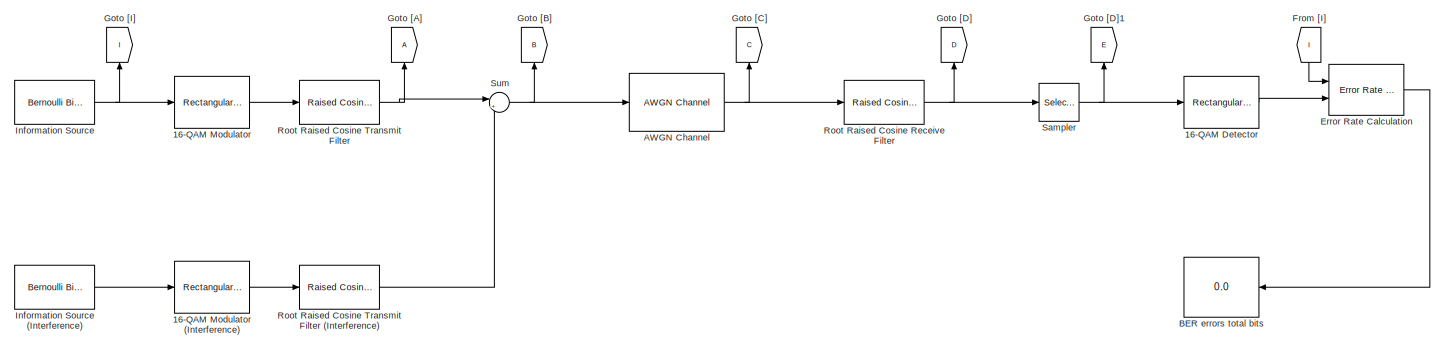
[diagram: root canvas - part 1/2, full width, top band]
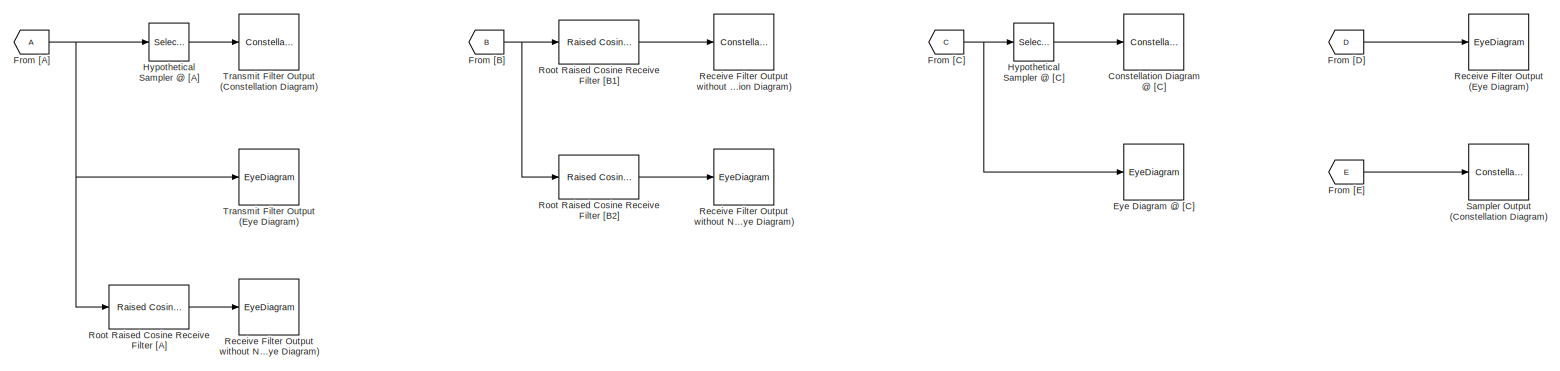
[diagram: root canvas - part 2/2, full width, bottom band]
MODEL slx_3459c69ff753
KIND model
CONFIG AbsTol = auto
CONFIG FixedStep = auto
CONFIG MaxStep = auto
CONFIG MinStep = auto
CONFIG RelTol = 1e-3
CONFIG SampleTimeConstraint = Unconstrained
CONFIG Solver = ode45
CONFIG SolverMode = Auto
CONFIG SolverName = ode45
CONFIG StartTime = 0.0
CONFIG StopTime = Inf
BLOCK [Reference] 16-QAM Detector  REF=commdigbbndam3/Rectangular QAM
Demodulator
Baseband
  AvgPow = 1
  Dec = Gray
  DecType = Hard decision
  M = 16
  Mapping = [0:15]
  MinDist = 2
  OutType = Bit
  PeakPow = 1
  Ph = 0
  Ports = [1, 1]
  PowType = Average Power
  SourceBlock = commdigbbndam3/Rectangular QAM\nDemodulator\nBaseband
  SourceType = Rectangular QAM Demodulator Baseband
  VarSource = Dialog
  Variance = 1
  denormFactorDTMode = Same word length as input
  denormFactorWordLen = 16
  derotateFactorDTMode = Same word length as input
  derotateFactorWordLen = 16
  outDtype1 = Inherit via internal rule
  outDtype2 = Inherit via internal rule
  prodOutDTMode = Inherit via internal rule
  prodOutOverflowMode = Wrap
  prodOutRoundingMode = Floor
  prodOutWordLen = 32
  sumDTMode = Inherit via internal rule
  sumWordLen = 32
BLOCK [Reference] 16-QAM Modulator  REF=commdigbbndam3/Rectangular QAM
Modulator
Baseband
  AvgPow = 1
  Enc = Gray
  InType = Bit
  M = 16
  Mapping = [0:15]
  MinDist = 2
  PeakPow = 1
  Ph = 0
  Ports = [1, 1]
  PowType = Average Power
  SourceBlock = commdigbbndam3/Rectangular QAM\nModulator\nBaseband
  SourceType = Rectangular QAM Modulator Baseband
  outDtype = double
  outFracLen = 15
  outFracLenMode = Best precision
  outUDDataType = sfix(16)
  outWordLen = 16
BLOCK [Reference] 16-QAM Modulator (Interference)  REF=commdigbbndam3/Rectangular QAM
Modulator
Baseband
  AvgPow = .01
  Enc = Gray
  InType = Bit
  M = 16
  Mapping = [0:15]
  MinDist = 2
  PeakPow = 1
  Ph = 0
  Ports = [1, 1]
  PowType = Average Power
  SourceBlock = commdigbbndam3/Rectangular QAM\nModulator\nBaseband
  SourceType = Rectangular QAM Modulator Baseband
  outDtype = double
  outFracLen = 15
  outFracLenMode = Best precision
  outUDDataType = sfix(16)
  outWordLen = 16
BLOCK [Reference] AWGN Channel  REF=commchan3/AWGN
Channel
  EbNodB = 10
  EsNodB = 10
  InputProcessing = Columns as channels (frame based)
  Ports = [1, 1]
  Ps = 1.01
  SNRdB = 15
  SourceBlock = commchan3/AWGN\nChannel
  SourceType = AWGN Channel
  Tsym = 1
  UserDataPersistent = on
  bitsPerSym = 1
  noiseMode = Signal to noise ratio  (SNR)
  seed = 67
  variance = 1
BLOCK [Display] BER errors total bits
  Decimation = 1
  Format = short_e
  Ports = [1]
BLOCK [ConstellationDiagram] Constellation Diagram @ [C]
  Ports = [1]
  ScopeSpecificationString = comm.scopes.ConstellationDiagramBlockCfg('CurrentConfiguration', extmgr.ConfigurationSet(extmgr.Configuration('Core','General UI',true),extmgr.Configuration('Core','Source UI',true),extmgr.Configuration('Sources','WiredSimulink',true),extmgr.Configuration('Sources','Simulink',false),extmgr.Configuration('Sources','File',false),extmgr.Configuration('Sources','Workspace',false),extmgr.Configuration(...<+1879ch>
BLOCK [Reference] Error Rate Calculation  REF=commsink2/Error Rate
Calculation
  N = 128
  PMode = Port
  Ports = [2, 1]
  RsMode2 = off
  SourceBlock = commsink2/Error Rate\nCalculation
  SourceType = Error Rate Calculation
  WsName = ErrorVec
  cp_mode = Entire frame
  maxBits = 1e6
  numErr = 100
  st_delay = 0
  stop = off
  subframe = [64:10000]
BLOCK [EyeDiagram] Eye Diagram @ [C]
  Ports = [1]
  ScopeSpecificationString = comm.scopes.EyeDiagramBlockCfg('CurrentConfiguration', extmgr.ConfigurationSet(extmgr.Configuration('Core','General UI',true),extmgr.Configuration('Core','Source UI',true),extmgr.Configuration('Sources','WiredSimulink',true),extmgr.Configuration('Sources','Simulink',false),extmgr.Configuration('Sources','File',false),extmgr.Configuration('Sources','Workspace',false),extmgr.Configuration('Sources',...<+1081ch>  <repeated x3 — deduplicated; at blocks: Eye Diagram @ [C], Receive Filter Output without Noise (Eye Diagra…, Receive Filter Output without Noise + Interfere…>
BLOCK [From] From [A]
BLOCK [From] From [B]
  GotoTag = B
BLOCK [From] From [C]
  GotoTag = C
BLOCK [From] From [D]
  GotoTag = D
BLOCK [From] From [E]
  GotoTag = E
BLOCK [From] From [I]
  GotoTag = I
BLOCK [Goto] Goto [A]
BLOCK [Goto] Goto [B]
  GotoTag = B
BLOCK [Goto] Goto [C]
  GotoTag = C
BLOCK [Goto] Goto [D]
  GotoTag = D
BLOCK [Goto] Goto [D]1
  GotoTag = E
BLOCK [Goto] Goto [I]
  GotoTag = I
BLOCK [Selector] Hypothetical Sampler @ [A]
  Indices = [257:16:40512]
  InputPortWidth = 40512
  Ports = [1, 1]
BLOCK [Selector] Hypothetical Sampler @ [C]
  Indices = [257:16:40512]
  InputPortWidth = 40512
  Ports = [1, 1]
BLOCK [Reference] Information Source  REF=commrandsrc2/Bernoulli Binary
Generator
  P = 0.5
  Ports = [0, 1]
  SourceBlock = commrandsrc2/Bernoulli Binary\nGenerator
  SourceType = Bernoulli Binary Generator
  Ts = 1
  frameBased = on
  orient = off
  outDataType = double
  sampPerFrame = 10128
  seed = 61
BLOCK [Reference] Information Source (Interference)  REF=commrandsrc2/Bernoulli Binary
Generator
  P = 0.5
  Ports = [0, 1]
  SourceBlock = commrandsrc2/Bernoulli Binary\nGenerator
  SourceType = Bernoulli Binary Generator
  Ts = 1
  frameBased = on
  orient = off
  outDataType = double
  sampPerFrame = 10128
  seed = 2^30
BLOCK [EyeDiagram] Receive Filter Output (Eye Diagram)
  Ports = [1]
  ScopeSpecificationString = comm.scopes.EyeDiagramBlockCfg('CurrentConfiguration', extmgr.ConfigurationSet(extmgr.Configuration('Core','General UI',true),extmgr.Configuration('Core','Source UI',true),extmgr.Configuration('Sources','WiredSimulink',true),extmgr.Configuration('Sources','Simulink',false),extmgr.Configuration('Sources','File',false),extmgr.Configuration('Sources','Workspace',false),extmgr.Configuration('Sources',...<+1079ch>
BLOCK [EyeDiagram] Receive Filter Output without Noise (Eye Diagram)
  Ports = [1]
BLOCK [ConstellationDiagram] Receive Filter Output without Noise + Interference (Constellation Diagram)
  Ports = [1]
  ScopeSpecificationString = comm.scopes.ConstellationDiagramBlockCfg('CurrentConfiguration', extmgr.ConfigurationSet(extmgr.Configuration('Core','General UI',true),extmgr.Configuration('Core','Source UI',true),extmgr.Configuration('Sources','WiredSimulink',true),extmgr.Configuration('Sources','Simulink',false),extmgr.Configuration('Sources','File',false),extmgr.Configuration('Sources','Workspace',false),extmgr.Configuration(...<+1883ch>
BLOCK [EyeDiagram] Receive Filter Output without Noise + Interference (Eye Diagram)
  Ports = [1]
BLOCK [Reference] Root Raised Cosine Receive Filter  REF=commfilt2/Raised Cosine
Receive Filter
  D = (32)/2
  InputProcessing = Columns as channels (frame based)
  LockScale = off
  N = 16
  Ports = [1, 1]
  R = 0.35
  SourceBlock = commfilt2/Raised Cosine\nReceive Filter
  SourceType = Raised Cosine Receive Filter
  UserDataPersistent = on
  accumFracLength = 30
  accumMode = Same as product output
  accumWordLength = 32
  checkCoeff = off
  checkGain = Normalized
  coeffFracLength = 15
  coeffMode = Same word length as input
  coeffWordLength = 16
  currentFiltSpan = 32
  downFactor = 1
  downOffset = 0
  filtSpan = 32
  filtType = Square root
  filterGain = 1
  framing = Enforce single-rate processing
  launchFVT = on
  outputFracLength = 15
  outputMode = Same as accumulator
  outputWordLength = 16
  overflowMode = off
  prodOutputFracLength = 30
  prodOutputMode = Same as input
  prodOutputWordLength = 32
  rateMode = Downsampling
  roundingMode = Floor
  sampMode = Mute
  saveAsFlag = 0
  variableName = rcRxFilt1
BLOCK [Reference] Root Raised Cosine Receive Filter [A]  REF=commfilt2/Raised Cosine
Receive Filter
  D = (32)/2
  InputProcessing = Columns as channels (frame based)
  LockScale = off
  N = 16
  Ports = [1, 1]
  R = 0.35
  SourceBlock = commfilt2/Raised Cosine\nReceive Filter
  SourceType = Raised Cosine Receive Filter
  UserDataPersistent = on
  accumFracLength = 30
  accumMode = Same as product output
  accumWordLength = 32
  checkCoeff = off
  checkGain = Normalized
  coeffFracLength = 15
  coeffMode = Same word length as input
  coeffWordLength = 16
  currentFiltSpan = 32
  downFactor = 1
  downOffset = 0
  filtSpan = 32
  filtType = Square root
  filterGain = 1
  framing = Enforce single-rate processing
  launchFVT = on
  outputFracLength = 15
  outputMode = Same as accumulator
  outputWordLength = 16
  overflowMode = off
  prodOutputFracLength = 30
  prodOutputMode = Same as input
  prodOutputWordLength = 32
  rateMode = Downsampling
  roundingMode = Floor
  sampMode = Mute
  saveAsFlag = 0
  variableName = rcRxFilt
BLOCK [Reference] Root Raised Cosine Receive Filter [B1]  REF=commfilt2/Raised Cosine
Receive Filter
  D = (32)/2
  InputProcessing = Columns as channels (frame based)
  LockScale = off
  N = 16
  Ports = [1, 1]
  R = 0.35
  SourceBlock = commfilt2/Raised Cosine\nReceive Filter
  SourceType = Raised Cosine Receive Filter
  UserDataPersistent = on
  accumFracLength = 30
  accumMode = Same as product output
  accumWordLength = 32
  checkCoeff = off
  checkGain = Normalized
  coeffFracLength = 15
  coeffMode = Same word length as input
  coeffWordLength = 16
  currentFiltSpan = 32
  downFactor = 16
  downOffset = 0
  filtSpan = 32
  filtType = Square root
  filterGain = 1
  framing = Enforce single-rate processing
  launchFVT = on
  outputFracLength = 15
  outputMode = Same as accumulator
  outputWordLength = 16
  overflowMode = off
  prodOutputFracLength = 30
  prodOutputMode = Same as input
  prodOutputWordLength = 32
  rateMode = Downsampling
  roundingMode = Floor
  sampMode = Mute
  saveAsFlag = 0
  variableName = rcRxFilt1
BLOCK [Reference] Root Raised Cosine Receive Filter [B2]  REF=commfilt2/Raised Cosine
Receive Filter
  D = (32)/2
  InputProcessing = Columns as channels (frame based)
  LockScale = off
  N = 16
  Ports = [1, 1]
  R = 0.35
  SourceBlock = commfilt2/Raised Cosine\nReceive Filter
  SourceType = Raised Cosine Receive Filter
  UserDataPersistent = on
  accumFracLength = 30
  accumMode = Same as product output
  accumWordLength = 32
  checkCoeff = off
  checkGain = Normalized
  coeffFracLength = 15
  coeffMode = Same word length as input
  coeffWordLength = 16
  currentFiltSpan = 32
  downFactor = 1
  downOffset = 0
  filtSpan = 32
  filtType = Square root
  filterGain = 1
  framing = Enforce single-rate processing
  launchFVT = on
  outputFracLength = 15
  outputMode = Same as accumulator
  outputWordLength = 16
  overflowMode = off
  prodOutputFracLength = 30
  prodOutputMode = Same as input
  prodOutputWordLength = 32
  rateMode = Downsampling
  roundingMode = Floor
  sampMode = Mute
  saveAsFlag = 0
  variableName = rcRxFilt1
BLOCK [Reference] Root Raised Cosine Transmit Filter  REF=commfilt2/Raised Cosine
Transmit Filter
  D = (32)/2
  InputProcessing = Columns as channels (frame based)
  LockScale = off
  N = 16
  Ports = [1, 1]
  R = 0.35
  SourceBlock = commfilt2/Raised Cosine\nTransmit Filter
  SourceType = Raised Cosine Transmit Filter
  UserDataPersistent = on
  accumFracLength = 30
  accumMode = Inherit via internal rule
  accumWordLength = 32
  checkCoeff = off
  checkGain = Normalized
  coeffFracLength = 15
  coeffMode = Same word length as input
  coeffWordLength = 16
  currentFiltSpan = 32
  filtSpan = 32
  filtType = Square root
  filterGain = 1
  framing = Enforce single-rate processing
  launchFVT = on
  outputFracLength = 15
  outputMode = Same as accumulator
  outputWordLength = 16
  overflowMode = off
  prodOutputFracLength = 30
  prodOutputMode = Inherit via internal rule
  prodOutputWordLength = 32
  roundingMode = Floor
  sampMode = Mute
  saveAsFlag = 0
  variableName = rcTxFilt
BLOCK [Reference] Root Raised Cosine Transmit Filter (Interference)  REF=commfilt2/Raised Cosine
Transmit Filter
  D = (32)/2
  InputProcessing = Columns as channels (frame based)
  LockScale = off
  N = 16
  Ports = [1, 1]
  R = 0.35
  SourceBlock = commfilt2/Raised Cosine\nTransmit Filter
  SourceType = Raised Cosine Transmit Filter
  UserDataPersistent = on
  accumFracLength = 30
  accumMode = Inherit via internal rule
  accumWordLength = 32
  checkCoeff = off
  checkGain = Normalized
  coeffFracLength = 15
  coeffMode = Same word length as input
  coeffWordLength = 16
  currentFiltSpan = 32
  filtSpan = 32
  filtType = Square root
  filterGain = 1
  framing = Enforce single-rate processing
  launchFVT = on
  outputFracLength = 15
  outputMode = Same as accumulator
  outputWordLength = 16
  overflowMode = off
  prodOutputFracLength = 30
  prodOutputMode = Inherit via internal rule
  prodOutputWordLength = 32
  roundingMode = Floor
  sampMode = Mute
  saveAsFlag = 0
  variableName = rcTxFilt1
BLOCK [Selector] Sampler
  Indices = [1:16:40512]
  InputPortWidth = 40512
  Ports = [1, 1]
BLOCK [ConstellationDiagram] Sampler Output (Constellation Diagram)
  Ports = [1]
  ScopeSpecificationString = comm.scopes.ConstellationDiagramBlockCfg('CurrentConfiguration', extmgr.ConfigurationSet(extmgr.Configuration('Core','General UI',true),extmgr.Configuration('Core','Source UI',true),extmgr.Configuration('Sources','WiredSimulink',true),extmgr.Configuration('Sources','Simulink',false),extmgr.Configuration('Sources','File',false),extmgr.Configuration('Sources','Workspace',false),extmgr.Configuration(...<+1879ch>
BLOCK [Sum] Sum
  IconShape = round
  InputSameDT = off
  Inputs = |++
  OutDataTypeStr = Inherit: Inherit via internal rule
  Ports = [2, 1]
  SaturateOnIntegerOverflow = off
BLOCK [ConstellationDiagram] Transmit Filter Output (Constellation Diagram)
  Ports = [1]
  ScopeSpecificationString = comm.scopes.ConstellationDiagramBlockCfg('CurrentConfiguration', extmgr.ConfigurationSet(extmgr.Configuration('Core','General UI',true),extmgr.Configuration('Core','Source UI',true),extmgr.Configuration('Sources','WiredSimulink',true),extmgr.Configuration('Sources','Simulink',false),extmgr.Configuration('Sources','File',false),extmgr.Configuration('Sources','Workspace',false),extmgr.Configuration(...<+1883ch>
BLOCK [EyeDiagram] Transmit Filter Output (Eye Diagram)
  Ports = [1]
  ScopeSpecificationString = comm.scopes.EyeDiagramBlockCfg('CurrentConfiguration', extmgr.ConfigurationSet(extmgr.Configuration('Core','General UI',true),extmgr.Configuration('Core','Source UI',true),extmgr.Configuration('Sources','WiredSimulink',true),extmgr.Configuration('Sources','Simulink',false),extmgr.Configuration('Sources','File',false),extmgr.Configuration('Sources','Workspace',false),extmgr.Configuration('Sources',...<+1078ch>
LINE 16-QAM Detector:1 -> Error Rate Calculation:2
LINE 16-QAM Modulator (Interference):1 -> Root Raised Cosine Transmit Filter (Interference):1
LINE 16-QAM Modulator:1 -> Root Raised Cosine Transmit Filter:1
NET AWGN Channel:1 -> Goto [C]:1, Root Raised Cosine Receive Filter:1
LINE Error Rate Calculation:1 -> BER errors total bits:1
NET From [A]:1 -> Hypothetical Sampler @ [A]:1, Root Raised Cosine Receive Filter [A]:1, Transmit Filter Output (Eye Diagram):1
NET From [B]:1 -> Root Raised Cosine Receive Filter [B1]:1, Root Raised Cosine Receive Filter [B2]:1
NET From [C]:1 -> Eye Diagram @ [C]:1, Hypothetical Sampler @ [C]:1
LINE From [D]:1 -> Receive Filter Output (Eye Diagram):1
LINE From [E]:1 -> Sampler Output (Constellation Diagram):1
LINE From [I]:1 -> Error Rate Calculation:1
LINE Hypothetical Sampler @ [A]:1 -> Transmit Filter Output (Constellation Diagram):1
LINE Hypothetical Sampler @ [C]:1 -> Constellation Diagram @ [C]:1
LINE Information Source (Interference):1 -> 16-QAM Modulator (Interference):1
NET Information Source:1 -> 16-QAM Modulator:1, Goto [I]:1
LINE Root Raised Cosine Receive Filter [A]:1 -> Receive Filter Output without Noise (Eye Diagram):1
LINE Root Raised Cosine Receive Filter [B1]:1 -> Receive Filter Output without Noise + Interference (Constellation Diagram):1
LINE Root Raised Cosine Receive Filter [B2]:1 -> Receive Filter Output without Noise + Interference (Eye Diagram):1
NET Root Raised Cosine Receive Filter:1 -> Goto [D]:1, Sampler:1
LINE Root Raised Cosine Transmit Filter (Interference):1 -> Sum:2
NET Root Raised Cosine Transmit Filter:1 -> Goto [A]:1, Sum:1
NET Sampler:1 -> 16-QAM Detector:1, Goto [D]1:1
NET Sum:1 -> AWGN Channel:1, Goto [B]:1
note: NET lines group one-source signal fan-out (src -> all destinations, sorted); 1:1 wires keep LINE
